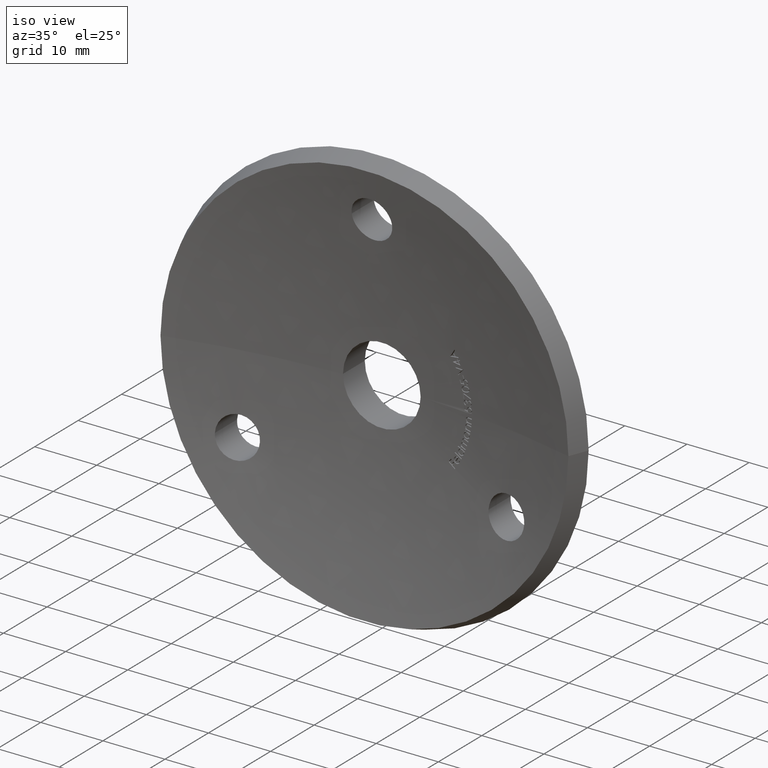
[diagram: clean part render]
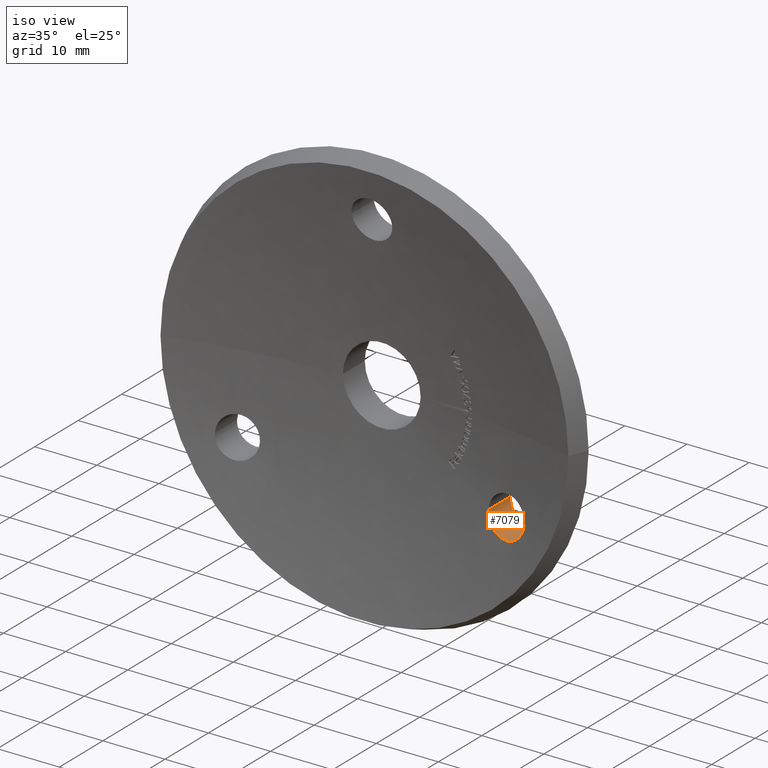
[diagram: same view with one face highlighted and labeled with its STEP entity id]
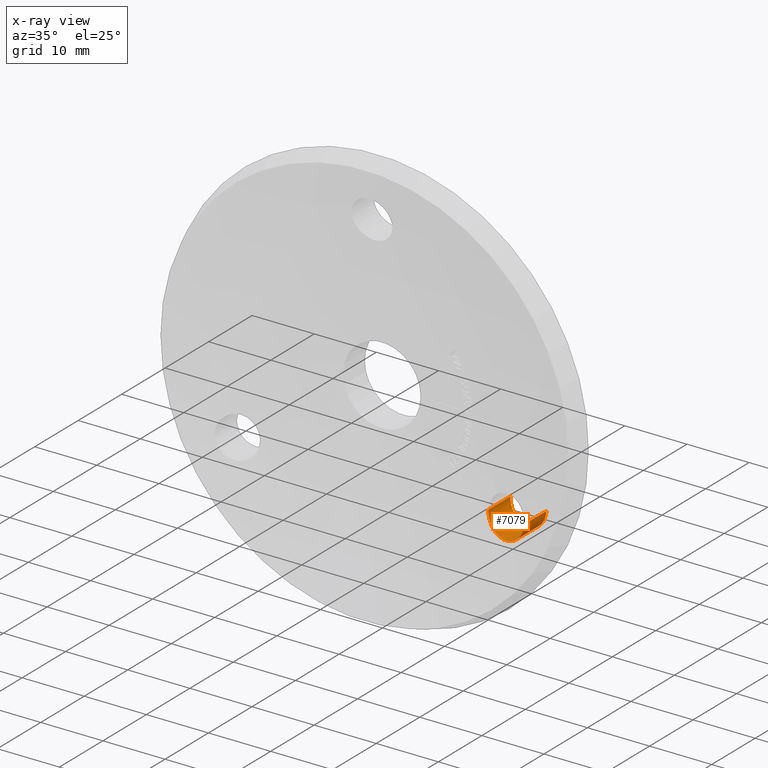
[diagram: x-ray of the same camera — body ghosted, the highlighted face saturated]
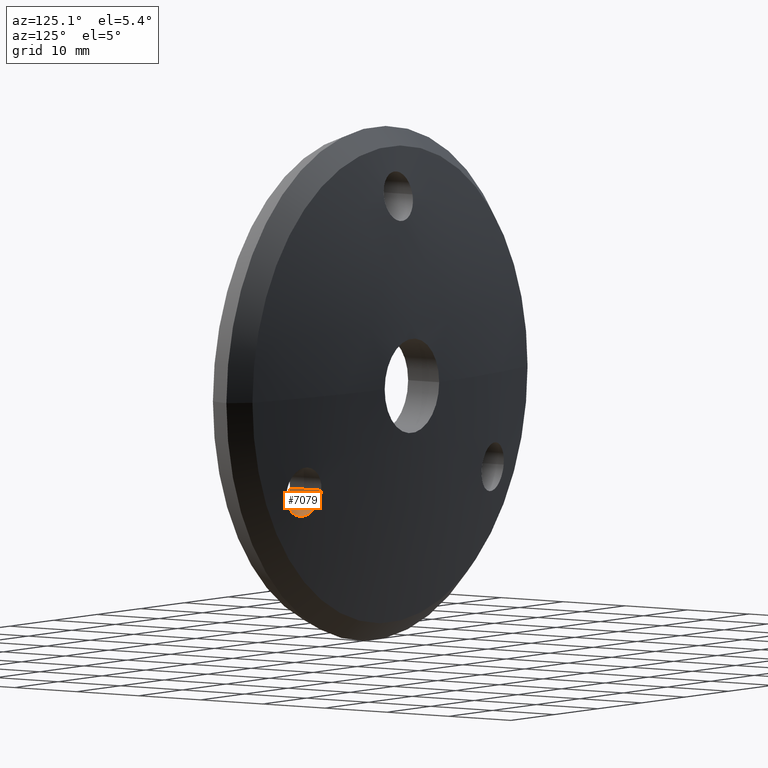
[diagram: same view with one face highlighted and labeled with its STEP entity id]
A machine part, iso view. The second image highlights one B-rep face of the part: STEP entity #7079.
The next image is the same camera in x-ray: the body ghosted, the highlighted face saturated — about 0% of this face is hidden behind the body in this view.
A second angle (auxiliary view) of the same face is appended — the face is thin or edge-on in the first view.
In plain terms, the highlighted cylindrical surface (edge-blend (fillet) strip) has radius 3.25 mm, axis along (-0, -1, 0).
Its self-contained STEP definition (entity closure, byte-faithful):
#154 = CARTESIAN_POINT ( 'NONE',  ( 24.08698599050950762, -3.042152436426486251, -14.66170560920413557 ) ) ;
#280 = CARTESIAN_POINT ( 'NONE',  ( 18.40063509461096558, -1.905327717442852453, -12.71250970199085017 ) ) ;
#408 = CARTESIAN_POINT ( 'NONE',  ( 20.00753297968704558, 2.664960523333355535, -15.33533113202369513 ) ) ;
#523 = CARTESIAN_POINT ( 'NONE',  ( 24.79524798743407388, 2.079251724942865920, -13.34822851572565838 ) ) ;
#564 = CARTESIAN_POINT ( 'NONE',  ( 21.20630468683646441, 2.434163380145796030, -15.74696489451178572 ) ) ;
#880 = B_SPLINE_CURVE_WITH_KNOTS ( 'NONE', 3,
 ( #9812, #7013, #9973, #523, #4144, #4218, #3241, #7092, #10928, #10814, #2413, #2298, #5216, #10885, #11869, #6190, #10773, #564, #6031, #408, #6974, #10849, #1355, #8885, #8922, #5092, #3283, #6354, #10007, #11128 ),
 .UNSPECIFIED., .F., .F.,
 ( 4, 2, 2, 2, 2, 2, 2, 2, 2, 2, 2, 2, 2, 2, 4 ),
 ( 0.01292407023623314347, 0.01356419225118052352, 0.01420431426612790184, 0.01484443628107528189, 0.01548455829602266194, 0.01612468031097004026, 0.01676480232591742031, 0.01740492434086480036, 0.01804504635581218042, 0.01932529038570694052, 0.02060553441560169716, 0.02124565643054907374, 0.02188577844549645379, 0.02252590046044383038, 0.02316602247539120696 ),
 .UNSPECIFIED. ) ;
#1137 = CARTESIAN_POINT ( 'NONE',  ( 24.73301423579295033, -3.043106157160986314, -13.55260268732949669 ) ) ;
#1140 = DIRECTION ( 'NONE',  ( -5.475599149789915520E-15, -1.000000000000000000, 0.000000000000000000 ) ) ;
#1177 = CARTESIAN_POINT ( 'NONE',  ( 21.20389451720696528, -2.662437034513925660, -15.72613839892308540 ) ) ;
#1223 = CARTESIAN_POINT ( 'NONE',  ( 18.40063509461097269, -1.884943794249719362, -12.50000000000000888 ) ) ;
#1355 = CARTESIAN_POINT ( 'NONE',  ( 19.06482085027036888, 2.895355399360250548, -14.48003219182013623 ) ) ;
#1917 = B_SPLINE_CURVE_WITH_KNOTS ( 'NONE', 3,
 ( #11551, #6807, #9634, #6765, #1137, #6886, #7755, #2985, #154, #9721, #3152, #11626, #4938, #2049, #3922, #9768, #10599, #5851, #1177, #6848, #5020, #4095, #2130, #10557, #8719, #4853, #11505, #9677, #5808, #5900, #280, #1223 ),
 .UNSPECIFIED., .F., .F.,
 ( 4, 2, 2, 2, 2, 2, 2, 2, 2, 2, 2, 2, 2, 2, 2, 4 ),
 ( 0.01298659006360842159, 0.01362714027514782579, 0.01426769048668723172, 0.01490824069822663592, 0.01554879090976604011, 0.01618934112130544778, 0.01682989133284485198, 0.01747044154438425617, 0.01811099175592366037, 0.01875154196746306456, 0.01939209217900247223, 0.02067319260208128756, 0.02131374281362069523, 0.02195429302516009595, 0.02259484323669950015, 0.02323539344823890435 ),
 .UNSPECIFIED. ) ;
#2049 = CARTESIAN_POINT ( 'NONE',  ( 22.67191128428263269, -2.895128995512238568, -15.59268189046455966 ) ) ;
#2130 = CARTESIAN_POINT ( 'NONE',  ( 19.64516882812231557, -2.341123609609842227, -15.09216491436029095 ) ) ;
#2298 = CARTESIAN_POINT ( 'NONE',  ( 23.26031033781880453, 2.142110865524465169, -15.33140269317970983 ) ) ;
#2413 = CARTESIAN_POINT ( 'NONE',  ( 23.61618503859329010, 2.106562191901684145, -15.09701925623447316 ) ) ;
#2477 = DIRECTION ( 'NONE',  ( -5.475599149789915520E-15, -1.000000000000000000, 0.000000000000000000 ) ) ;
#2985 = CARTESIAN_POINT ( 'NONE',  ( 24.22525511913634944, -3.049182749997877639, -14.49485263460772444 ) ) ;
#2993 = EDGE_CURVE ( 'NONE', #5062, #5262, #3196, .T. ) ;
#3143 = ORIENTED_EDGE ( 'NONE', *, *, #7142, .T. ) ;
#3152 = CARTESIAN_POINT ( 'NONE',  ( 23.61498008545720850, -3.005256052304709602, -15.09795594303821176 ) ) ;
#3196 = LINE ( 'NONE', #9963, #11326 ) ;
#3241 = CARTESIAN_POINT ( 'NONE',  ( 24.46456085519105983, 2.058855274615191799, -14.14008136886290323 ) ) ;
#3283 = CARTESIAN_POINT ( 'NONE',  ( 18.50536167544482424, 3.089831189085348484, -13.34565713732285097 ) ) ;
#3483 = CARTESIAN_POINT ( 'NONE',  ( 24.90063509461099756, 2.141205001286021758, -12.50000000000000711 ) ) ;
#3862 = EDGE_LOOP ( 'NONE', ( #3143, #7882, #12190, #5060 ) ) ;
#3922 = CARTESIAN_POINT ( 'NONE',  ( 22.46865307423165348, -2.866889473701171642, -15.65259192850278502 ) ) ;
#3943 = EDGE_CURVE ( 'NONE', #12017, #5262, #1917, .T. ) ;
#4095 = CARTESIAN_POINT ( 'NONE',  ( 20.00645597715780610, -2.424730536625614441, -15.33471002873470468 ) ) ;
#4100 = CARTESIAN_POINT ( 'NONE',  ( 21.65063509461101177, 4.857572018106266931, -12.50000000000000888 ) ) ;
#4144 = CARTESIAN_POINT ( 'NONE',  ( 24.73309989053668900, 2.070281293100495468, -13.55222835220999400 ) ) ;
#4218 = CARTESIAN_POINT ( 'NONE',  ( 24.56752579193426556, 2.060011947045868208, -13.94931790273381544 ) ) ;
#4297 = DIRECTION ( 'NONE',  ( -5.475599149789915520E-15, -1.000000000000000000, 0.000000000000000000 ) ) ;
#4329 = CARTESIAN_POINT ( 'NONE',  ( 18.40063509461097269, -1.884943794249719362, -12.50000000000000888 ) ) ;
#4542 = LINE ( 'NONE', #8227, #11517 ) ;
#4845 = CARTESIAN_POINT ( 'NONE',  ( 18.40063509461100111, 3.184687488071022532, -12.50000000000000888 ) ) ;
#4853 = CARTESIAN_POINT ( 'NONE',  ( 18.83047226460870860, -2.112805786818643838, -14.12901915789279705 ) ) ;
#4938 = CARTESIAN_POINT ( 'NONE',  ( 23.06604944800078982, -2.945725195794276274, -15.43330675849214728 ) ) ;
#5020 = CARTESIAN_POINT ( 'NONE',  ( 20.58744910317206234, -2.545198865940740074, -15.57834972459719936 ) ) ;
#5060 = ORIENTED_EDGE ( 'NONE', *, *, #11378, .F. ) ;
#5062 = VERTEX_POINT ( 'NONE', #4845 ) ;
#5092 = CARTESIAN_POINT ( 'NONE',  ( 18.56692412936763503, 3.061291681362299233, -13.54789967619399782 ) ) ;
#5216 = CARTESIAN_POINT ( 'NONE',  ( 23.06808943147917645, 2.163696764786613436, -15.43233655172149810 ) ) ;
#5262 = VERTEX_POINT ( 'NONE', #4329 ) ;
#5808 = CARTESIAN_POINT ( 'NONE',  ( 18.50539132187973124, -1.983518159489154664, -13.34587052754399572 ) ) ;
#5851 = CARTESIAN_POINT ( 'NONE',  ( 21.41537480370624635, -2.699929023419770147, -15.74831268396946093 ) ) ;
#5900 = CARTESIAN_POINT ( 'NONE',  ( 18.42178080689717845, -1.929444937555021333, -12.92726493886632788 ) ) ;
#6031 = CARTESIAN_POINT ( 'NONE',  ( 20.78227034995510536, 2.510420471570194323, -15.65987813982265209 ) ) ;
#6190 = CARTESIAN_POINT ( 'NONE',  ( 22.05240838295251393, 2.299402638675524191, -15.73208695246785993 ) ) ;
#6354 = CARTESIAN_POINT ( 'NONE',  ( 18.42188647295795434, 3.141781288821329454, -12.92785887088139596 ) ) ;
#6371 = FACE_OUTER_BOUND ( 'NONE', #3862, .T. ) ;
#6765 = CARTESIAN_POINT ( 'NONE',  ( 24.79520559315237094, -3.033764564955152565, -13.34836252958176139 ) ) ;
#6807 = CARTESIAN_POINT ( 'NONE',  ( 24.90063509461098334, -2.989983205379822984, -12.71327403901017661 ) ) ;
#6848 = CARTESIAN_POINT ( 'NONE',  ( 20.78811332154477398, -2.584718096095614204, -15.64063724481068185 ) ) ;
#6886 = CARTESIAN_POINT ( 'NONE',  ( 24.56685560693125225, -3.053787017818154759, -13.95075549659114245 ) ) ;
#6974 = CARTESIAN_POINT ( 'NONE',  ( 19.64658146472042333, 2.745300213471416839, -15.09343697874318302 ) ) ;
#7013 = CARTESIAN_POINT ( 'NONE',  ( 24.90063509461100821, 2.121391305322573473, -12.71294670988385533 ) ) ;
#7079 = ADVANCED_FACE ( 'NONE', ( #6371 ), #12143, .F. ) ;
#7092 = CARTESIAN_POINT ( 'NONE',  ( 24.22592916140611052, 2.064388822234831888, -14.49396728962067016 ) ) ;
#7142 = EDGE_CURVE ( 'NONE', #8005, #5062, #880, .T. ) ;
#7755 = CARTESIAN_POINT ( 'NONE',  ( 24.46415019123042001, -3.054963812836421599, -14.14080410335386517 ) ) ;
#7882 = ORIENTED_EDGE ( 'NONE', *, *, #2993, .T. ) ;
#8005 = VERTEX_POINT ( 'NONE', #3483 ) ;
#8227 = CARTESIAN_POINT ( 'NONE',  ( 24.90063509461101177, 4.857572018106248279, -12.50000000000000888 ) ) ;
#8719 = CARTESIAN_POINT ( 'NONE',  ( 19.06478284523155509, -2.185547055261310323, -14.47999746183867131 ) ) ;
#8798 = DIRECTION ( 'NONE',  ( 1.000000000000000000, -5.604491230078916320E-15, 0.000000000000000000 ) ) ;
#8885 = CARTESIAN_POINT ( 'NONE',  ( 18.83064512873360030, 2.965317983956472059, -14.12930027288703272 ) ) ;
#8922 = CARTESIAN_POINT ( 'NONE',  ( 18.72902684991187172, 2.999160907536962295, -13.93929576982487717 ) ) ;
#9634 = CARTESIAN_POINT ( 'NONE',  ( 24.87913993946395053, -3.007338409794794387, -12.92988262195181193 ) ) ;
#9677 = CARTESIAN_POINT ( 'NONE',  ( 18.56702656744855418, -2.013184577863897040, -13.54814135441567480 ) ) ;
#9721 = CARTESIAN_POINT ( 'NONE',  ( 23.78080838298054900, -3.020083524899977334, -14.96396805789502338 ) ) ;
#9768 = CARTESIAN_POINT ( 'NONE',  ( 22.04963231296580872, -2.804479615562958550, -15.73245889415297505 ) ) ;
#9812 = CARTESIAN_POINT ( 'NONE',  ( 24.90063509461099756, 2.141205001286021758, -12.50000000000000711 ) ) ;
#9963 = CARTESIAN_POINT ( 'NONE',  ( 18.40063509461101177, 4.857572018106284695, -12.50000000000000888 ) ) ;
#9973 = CARTESIAN_POINT ( 'NONE',  ( 24.87918865581805150, 2.104688168561583694, -12.92956229235876897 ) ) ;
#10007 = CARTESIAN_POINT ( 'NONE',  ( 18.40063509461099756, 3.165064974931601771, -12.71253004191548719 ) ) ;
#10557 = CARTESIAN_POINT ( 'NONE',  ( 19.19786864325808295, -2.223354901606817258, -14.64268877988240547 ) ) ;
#10599 = CARTESIAN_POINT ( 'NONE',  ( 21.83670676622739037, -2.770696003531046614, -15.75150119642225377 ) ) ;
#10625 = AXIS2_PLACEMENT_3D ( 'NONE', #4100, #1140, #8798 ) ;
#10773 = CARTESIAN_POINT ( 'NONE',  ( 21.83862506368915035, 2.332017626427016932, -15.75139776186985152 ) ) ;
#10814 = CARTESIAN_POINT ( 'NONE',  ( 23.78198187254246676, 2.092308799108051343, -14.96298258098456913 ) ) ;
#10849 = CARTESIAN_POINT ( 'NONE',  ( 19.19800545756231003, 2.858937687910312775, -14.64289977414203037 ) ) ;
#10885 = CARTESIAN_POINT ( 'NONE',  ( 22.67366774507893723, 2.212377800314167420, -15.59211556151202949 ) ) ;
#10928 = CARTESIAN_POINT ( 'NONE',  ( 24.08846648249511091, 2.071091219748712575, -14.66006953737124618 ) ) ;
#11128 = CARTESIAN_POINT ( 'NONE',  ( 18.40063509461100111, 3.184687488071022532, -12.50000000000000888 ) ) ;
#11326 = VECTOR ( 'NONE', #4297, 1000.000000000000000 ) ;
#11378 = EDGE_CURVE ( 'NONE', #8005, #12017, #4542, .T. ) ;
#11505 = CARTESIAN_POINT ( 'NONE',  ( 18.72889895710991581, -2.077647594373126516, -13.93899263043474512 ) ) ;
#11517 = VECTOR ( 'NONE', #2477, 1000.000000000000000 ) ;
#11551 = CARTESIAN_POINT ( 'NONE',  ( 24.90063509461210600, -2.969354307147612726, -12.49999999999995914 ) ) ;
#11626 = CARTESIAN_POINT ( 'NONE',  ( 23.25846137984750683, -2.968206583267181120, -15.33247611843996872 ) ) ;
#11869 = CARTESIAN_POINT ( 'NONE',  ( 22.47053439792938789, 2.239519735841673409, -15.65207439251611099 ) ) ;
#12017 = VERTEX_POINT ( 'NONE', #12117 ) ;
#12117 = CARTESIAN_POINT ( 'NONE',  ( 24.90063509461210600, -2.969354307147612726, -12.49999999999995914 ) ) ;
#12143 = CYLINDRICAL_SURFACE ( 'NONE', #10625, 3.249999999999999556 ) ;
#12190 = ORIENTED_EDGE ( 'NONE', *, *, #3943, .F. ) ;